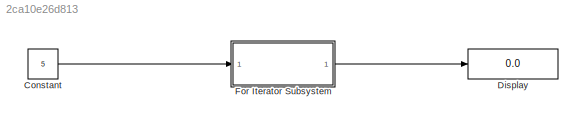
MODEL slx_2ca10e26d813
KIND model
CONFIG AbsTol = auto
CONFIG EnableMultiTasking = off
CONFIG FixedStep = auto
CONFIG MaxStep = auto
CONFIG MinStep = auto
CONFIG RelTol = 1e-3
CONFIG SampleTimeConstraint = Unconstrained
CONFIG SolverName = VariableStepAuto
CONFIG StartTime = 1
CONFIG StopTime = 1
BLOCK [Constant] Constant
  Value = 5
BLOCK [Display] Display
  Decimation = 1
  Ports = [1]
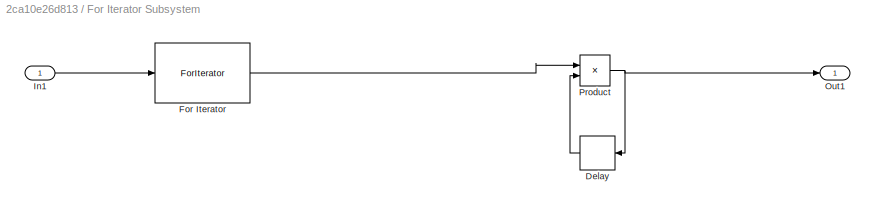
BLOCK [SubSystem] For Iterator Subsystem
  Ports = [1, 1]
  RequestExecContextInheritance = off
  TreatAsAtomicUnit = on
BLOCK [Delay] For Iterator Subsystem/Delay
  DelayLength = 1
  InitialCondition = 1
  InputPortMap = u0
  Ports = [1, 1]
BLOCK [ForIterator] For Iterator Subsystem/For Iterator
  IterationSource = external
  Ports = [1, 1]
BLOCK [Inport] For Iterator Subsystem/In1
BLOCK [Outport] For Iterator Subsystem/Out1
BLOCK [Product] For Iterator Subsystem/Product
  OutDataTypeStr = int32
  Ports = [2, 1]
LINE Constant:1 -> For Iterator Subsystem:1
LINE For Iterator Subsystem/Delay:1 -> For Iterator Subsystem/Product:2
LINE For Iterator Subsystem/For Iterator:1 -> For Iterator Subsystem/Product:1
LINE For Iterator Subsystem/In1:1 -> For Iterator Subsystem/For Iterator:1
NET For Iterator Subsystem/Product:1 -> For Iterator Subsystem/Delay:1, For Iterator Subsystem/Out1:1
LINE For Iterator Subsystem:1 -> Display:1
note: NET lines group one-source signal fan-out (src -> all destinations, sorted); 1:1 wires keep LINE
